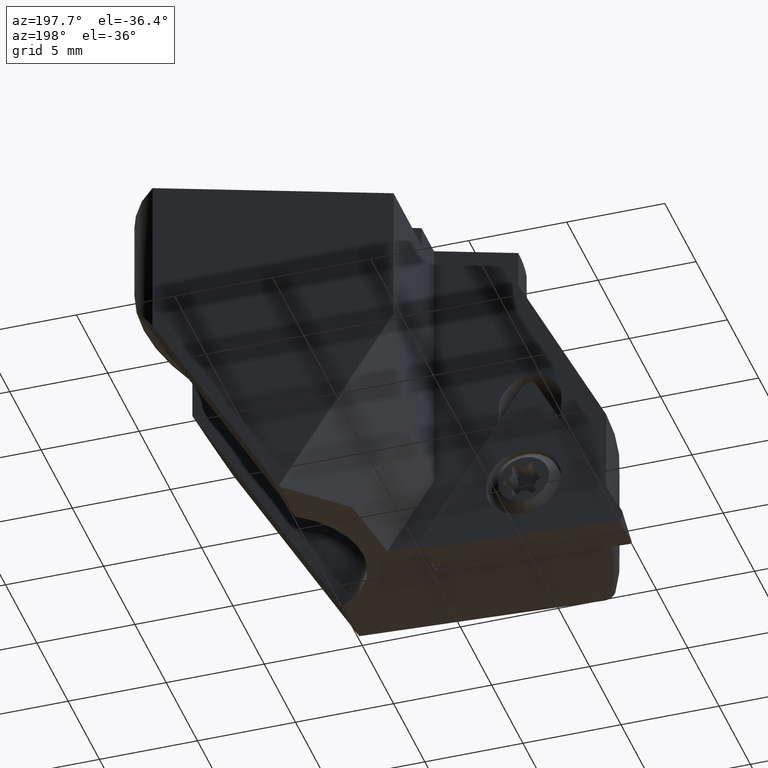
[diagram: clean part render]
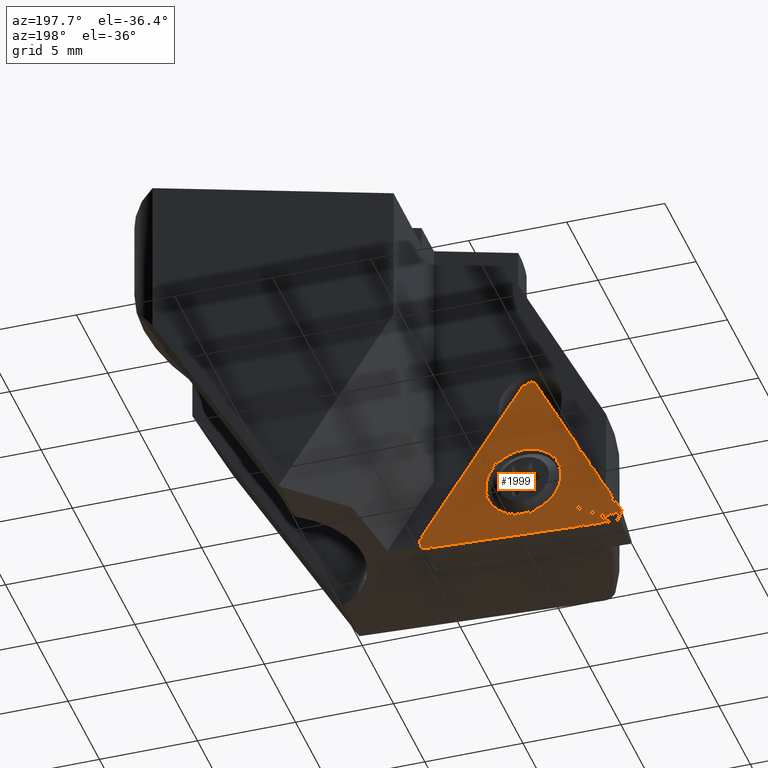
[diagram: same view with one face highlighted and labeled with its STEP entity id]
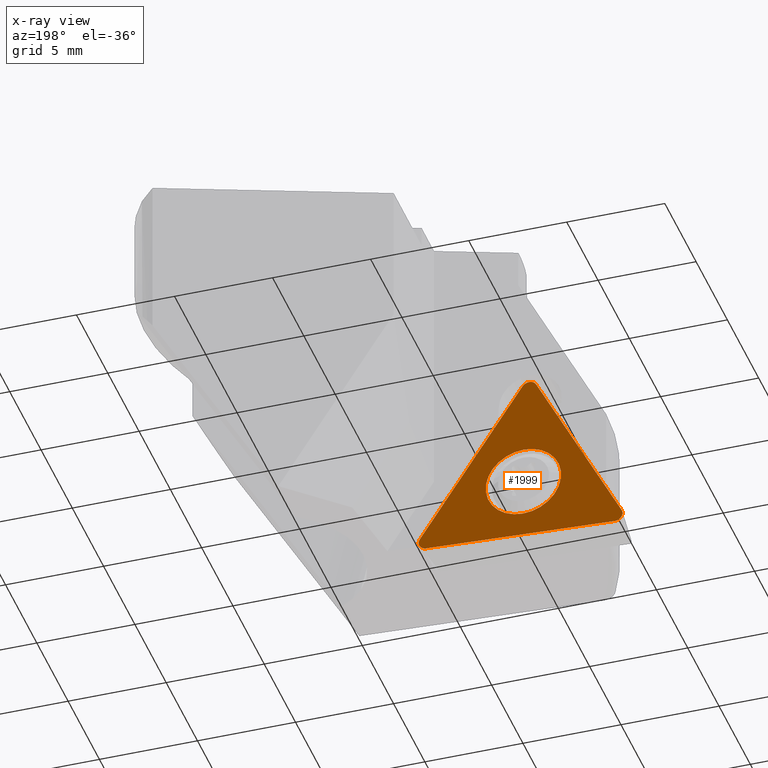
[diagram: x-ray of the same camera — body ghosted, the highlighted face saturated]
A machine part, auxiliary view. The second image highlights one B-rep face of the part: STEP entity #1999.
The next image is the same camera in x-ray: the body ghosted, the highlighted face saturated — about 0% of this face is hidden behind the body in this view.
In plain terms, the highlighted planar face has unit normal (-0, -1, -0).
Its self-contained STEP definition (entity closure, byte-faithful):
#799=EDGE_CURVE('NONE',#1057,#2245,#2289,.T.);
#821=VERTEX_POINT('',#2315);
#823=VERTEX_POINT('NONE',#2317);
#943=VERTEX_POINT('NONE',#2454);
#951=VERTEX_POINT('NONE',#2463);
#1005=EDGE_CURVE('NONE',#951,#1581,#2521,.T.);
#1057=VERTEX_POINT('NONE',#2577);
#1167=VERTEX_POINT('NONE',#2701);
#1201=EDGE_CURVE('NONE',#1581,#943,#2738,.T.);
#1239=EDGE_CURVE('NONE',#823,#1497,#2781,.T.);
#1293=EDGE_CURVE('NONE',#2245,#1167,#2841,.T.);
#1401=EDGE_CURVE('NONE',#1167,#1985,#2964,.T.);
#1497=VERTEX_POINT('NONE',#3071);
#1549=EDGE_CURVE('NONE',#943,#1057,#3128,.T.);
#1581=VERTEX_POINT('NONE',#3163);
#1895=EDGE_CURVE('NONE',#1497,#823,#3498,.T.);
#1923=EDGE_CURVE('NONE',#821,#951,#3531,.T.);
#1953=EDGE_CURVE('NONE',#1985,#821,#3565,.T.);
#1985=VERTEX_POINT('NONE',#3599);
#1999=ADVANCED_FACE('NONE',(#3614,#3615),#3616,.F.);
#2245=VERTEX_POINT('NONE',#3886);
#2289=CIRCLE('',#3935,0.4);
#2315=CARTESIAN_POINT('',(-10.0091277035542,0.279999999999953,-12.9362548502021));
#2317=CARTESIAN_POINT('',(-9.02761378877387,0.279999999999956,-17.1223880389787));
#2454=CARTESIAN_POINT('',(-4.93423875455925,0.279999999999955,-21.7541504652218));
#2463=CARTESIAN_POINT('',(-9.85525567627184,0.279999999999952,-13.0748018458714));
#2521=LINE('',#4243,#4244);
#2577=CARTESIAN_POINT('',(-14.5339466159018,0.27999999999997,-22.2572498360004));
#2701=CARTESIAN_POINT('',(-14.9112836080743,0.27999999999997,-21.6762018222027));
#2738=CIRCLE('',#4537,0.4);
#2781=CIRCLE('',#4590,1.92216700135473);
#2841=CIRCLE('',#4671,0.4);
#2964=LINE('',#4845,#4846);
#3071=CARTESIAN_POINT('',(-10.7729049038298,0.279999999999963,-20.5477147165519));
#3128=LINE('',#5447,#5448);
#3163=CARTESIAN_POINT('',(-4.61970490987824,0.279999999999954,-21.1368430373139));
#3498=CIRCLE('',#5960,1.92216700135473);
#3531=CIRCLE('',#6000,0.400000000000001);
#3565=CIRCLE('',#6058,0.400000000000001);
#3599=CARTESIAN_POINT('',(-10.5471265131254,0.279999999999954,-13.1110612599816));
#3614=FACE_OUTER_BOUND('',#6131,.T.);
#3615=FACE_BOUND('',#6132,.T.);
#3616=PLANE('',#6133);
#3886=CARTESIAN_POINT('',(-14.7364771982948,0.27999999999997,-22.2142006317739));
#3935=AXIS2_PLACEMENT_3D('',#6513,#6514,#6515);
#4243=CARTESIAN_POINT('',(-4.61970490987824,0.279999999999954,-21.1368430373139));
#4244=VECTOR('',#6823,1000.0);
#4537=AXIS2_PLACEMENT_3D('',#7082,#7083,#7084);
#4590=AXIS2_PLACEMENT_3D('',#7151,#7152,#7153);
#4671=AXIS2_PLACEMENT_3D('',#7232,#7233,#7234);
#4845=CARTESIAN_POINT('',(-14.9112836080743,0.27999999999997,-21.6762018222027));
#4846=VECTOR('',#7401,1000.0);
#5447=CARTESIAN_POINT('',(-14.5339466159018,0.27999999999997,-22.2572498360004));
#5448=VECTOR('',#7591,1000.0);
#5960=AXIS2_PLACEMENT_3D('',#7984,#7985,#7986);
#6000=AXIS2_PLACEMENT_3D('',#8045,#8046,#8047);
#6058=AXIS2_PLACEMENT_3D('',#8089,#8090,#8091);
#6131=EDGE_LOOP('',(#8149,#8150,#8151,#8152,#8153,#8154,#8155,#8156));
#6132=EDGE_LOOP('',(#8157,#8158));
#6133=AXIS2_PLACEMENT_3D('',#8159,#8160,#8161);
#6513=CARTESIAN_POINT('',(-14.554880998399,0.27999999999997,-21.8577980220986));
#6514=DIRECTION('',(1.49716038624421E-015,1.0,1.15643625330431E-015));
#6515=DIRECTION('',(-0.453990499739571,1.71008883844338E-015,-0.891006524188355));
#6823=DIRECTION('',(0.544639035015007,1.58676046733321E-016,-0.838670567945437));
#7082=CARTESIAN_POINT('',(-4.95517313705641,0.279999999999955,-21.3546986513199));
#7083=DIRECTION('',(1.49716038624421E-015,1.0,1.15643625330431E-015));
#7084=DIRECTION('',(-0.453990499739571,1.71008883844338E-015,-0.891006524188355));
#7151=CARTESIAN_POINT('',(-9.90025934630182,0.279999999999959,-18.8350513777653));
#7152=DIRECTION('',(-1.49716038624421E-015,-1.0,-1.15643625330431E-015));
#7153=DIRECTION('',(-0.453990499739571,1.71008883844338E-015,-0.891006524188355));
#7232=CARTESIAN_POINT('',(-14.554880998399,0.27999999999997,-21.8577980220986));
#7233=DIRECTION('',(1.49716038624421E-015,1.0,1.15643625330431E-015));
#7234=DIRECTION('',(-0.453990499739571,1.71008883844338E-015,-0.891006524188355));
#7401=DIRECTION('',(0.453990499739571,-1.71852680926066E-015,0.891006524188355));
#7591=DIRECTION('',(-0.998629534754575,1.55985076252733E-015,-0.0523359562429136));
#7984=CARTESIAN_POINT('',(-9.90025934630182,0.279999999999959,-18.8350513777653));
#7985=DIRECTION('',(-1.49716038624421E-015,-1.0,-1.15643625330431E-015));
#7986=DIRECTION('',(-0.453990499739571,1.71008883844338E-015,-0.891006524188355));
#8045=CARTESIAN_POINT('',(-10.19072390345,0.279999999999953,-13.2926574598774));
#8046=DIRECTION('',(1.49716038624421E-015,1.0,1.15643625330431E-015));
#8047=DIRECTION('',(-0.453990499739571,1.71008883844338E-015,-0.891006524188355));
#8089=CARTESIAN_POINT('',(-10.19072390345,0.279999999999953,-13.2926574598774));
#8090=DIRECTION('',(1.49716038624421E-015,1.0,1.15643625330431E-015));
#8091=DIRECTION('',(-0.453990499739571,1.71008883844338E-015,-0.891006524188355));
#8149=ORIENTED_EDGE('',*,*,#799,.T.);
#8150=ORIENTED_EDGE('',*,*,#1293,.T.);
#8151=ORIENTED_EDGE('',*,*,#1401,.T.);
#8152=ORIENTED_EDGE('',*,*,#1953,.T.);
#8153=ORIENTED_EDGE('',*,*,#1923,.T.);
#8154=ORIENTED_EDGE('',*,*,#1005,.T.);
#8155=ORIENTED_EDGE('',*,*,#1201,.T.);
#8156=ORIENTED_EDGE('',*,*,#1549,.T.);
#8157=ORIENTED_EDGE('',*,*,#1239,.T.);
#8158=ORIENTED_EDGE('',*,*,#1895,.T.);
#8159=CARTESIAN_POINT('',(-14.554880998399,0.27999999999997,-21.8577980220986));
#8160=DIRECTION('',(-1.49716038624421E-015,-1.0,-1.15643625330431E-015));
#8161=DIRECTION('',(-0.891006524188355,8.08968599345363E-016,0.453990499739571));